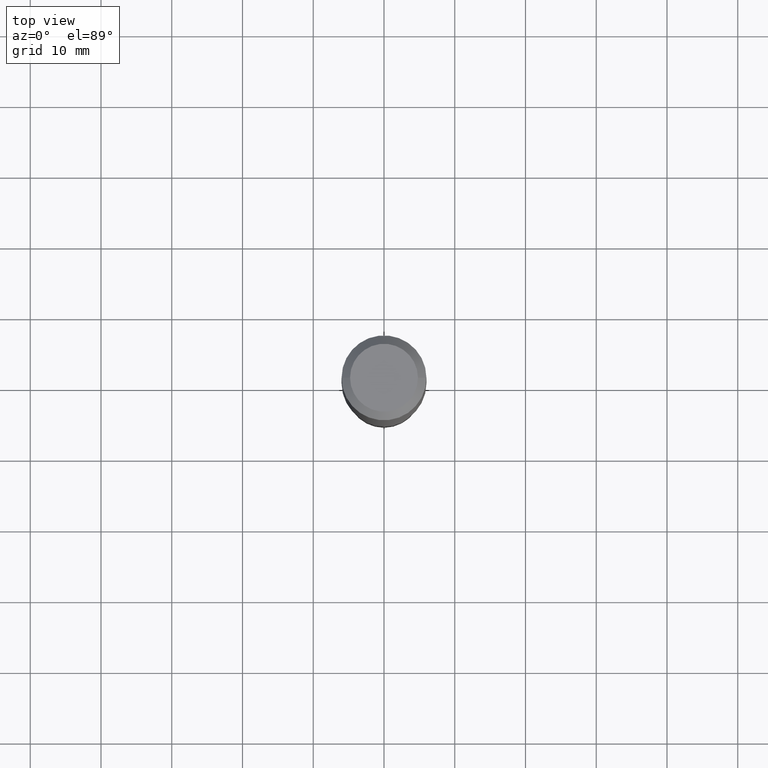
[diagram: clean part render]
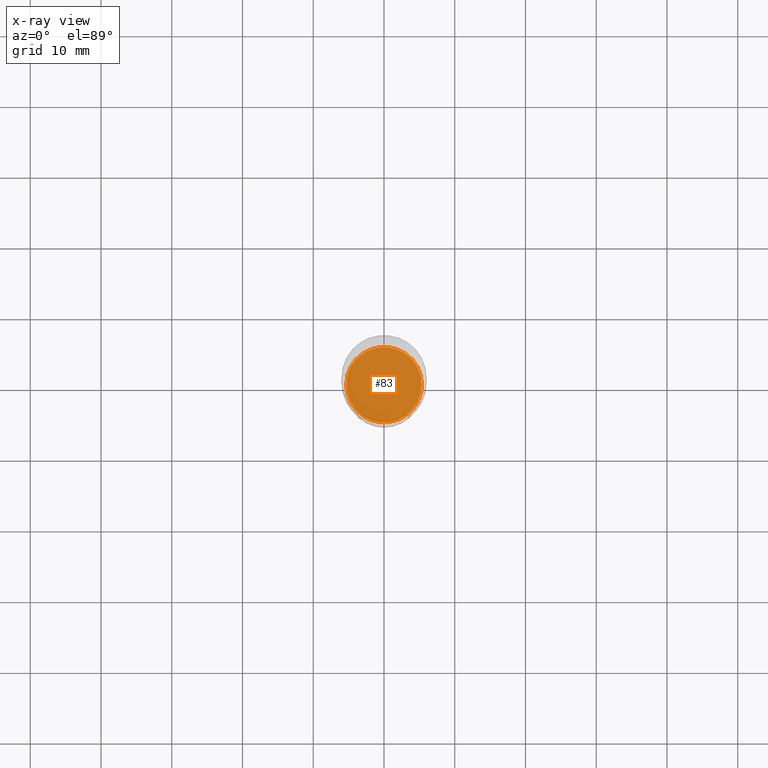
[diagram: x-ray — body ghosted, one internal face saturated and labeled with its STEP entity id]
A machine part, top view, then the same camera in x-ray: the body is ghosted and one INTERNAL B-rep face — a face not visible from any outside direction — is saturated and labeled: STEP entity #83.
In plain terms, the highlighted planar face has unit normal (-0, 0, 1).
Its self-contained STEP definition (entity closure, byte-faithful):
#25 = CARTESIAN_POINT ( 'NONE',  ( -0.2101500000000000035, -6.435394222942127608E-15, -2.271599999999999842 ) ) ;
#27 = DIRECTION ( 'NONE',  ( -2.445468806185136597E-29, 3.491481338843145583E-15, 1.000000000000000000 ) ) ;
#52 = VERTEX_POINT ( 'NONE', #25 ) ;
#69 = EDGE_CURVE ( 'NONE', #425, #52, #306, .T. ) ;
#79 = AXIS2_PLACEMENT_3D ( 'NONE', #228, #455, #393 ) ;
#83 = ADVANCED_FACE ( 'NONE', ( #96 ), #303, .F. ) ;
#96 = FACE_OUTER_BOUND ( 'NONE', #203, .T. ) ;
#135 = DIRECTION ( 'NONE',  ( 1.000000000000000000, -6.982962677686268288E-15, 0.000000000000000000 ) ) ;
#203 = EDGE_LOOP ( 'NONE', ( #384, #288 ) ) ;
#228 = CARTESIAN_POINT ( 'NONE',  ( 5.555126940130156501E-29, -7.931249009316088980E-15, -2.271599999999999842 ) ) ;
#247 = CIRCLE ( 'NONE', #312, 0.2101500000000000035 ) ;
#288 = ORIENTED_EDGE ( 'NONE', *, *, #434, .F. ) ;
#296 = DIRECTION ( 'NONE',  ( 1.000000000000000000, -6.982962677686268288E-15, 0.000000000000000000 ) ) ;
#303 = PLANE ( 'NONE',  #79 ) ;
#306 = CIRCLE ( 'NONE', #401, 0.2101500000000000035 ) ;
#312 = AXIS2_PLACEMENT_3D ( 'NONE', #378, #27, #135 ) ;
#346 = CARTESIAN_POINT ( 'NONE',  ( 0.2101500000000000035, -9.398718616031857734E-15, -2.271599999999999842 ) ) ;
#378 = CARTESIAN_POINT ( 'NONE',  ( 5.555126940130156501E-29, -7.931249009316088980E-15, -2.271599999999999842 ) ) ;
#384 = ORIENTED_EDGE ( 'NONE', *, *, #69, .F. ) ;
#393 = DIRECTION ( 'NONE',  ( 1.000000000000000000, -6.982962677686265922E-15, 4.876176775795935793E-29 ) ) ;
#401 = AXIS2_PLACEMENT_3D ( 'NONE', #452, #422, #296 ) ;
#422 = DIRECTION ( 'NONE',  ( -2.445468806185136597E-29, 3.491481338843145583E-15, 1.000000000000000000 ) ) ;
#425 = VERTEX_POINT ( 'NONE', #346 ) ;
#434 = EDGE_CURVE ( 'NONE', #52, #425, #247, .T. ) ;
#452 = CARTESIAN_POINT ( 'NONE',  ( 5.555126940130156501E-29, -7.931249009316088980E-15, -2.271599999999999842 ) ) ;
#455 = DIRECTION ( 'NONE',  ( -2.438088387897960049E-29, 3.491481338843145188E-15, 1.000000000000000000 ) ) ;